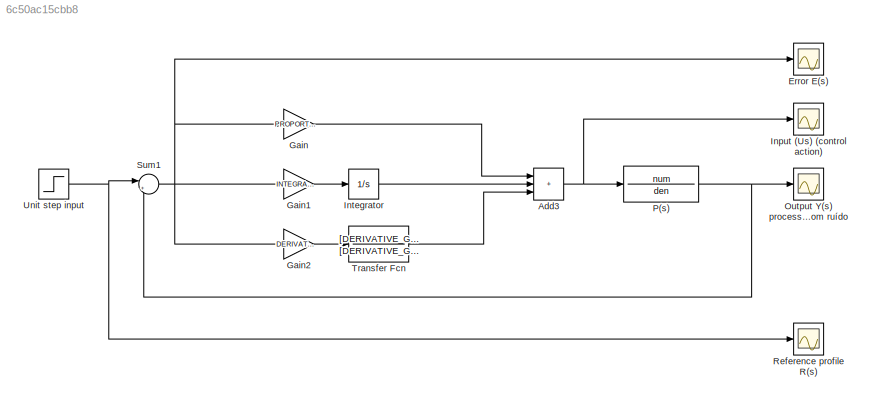
MODEL slx_6c50ac15cbb8
KIND model
CONFIG AbsTol = auto
CONFIG EnableMultiTasking = on
CONFIG FixedStep = 10/1000
CONFIG MaxStep = auto
CONFIG MinStep = auto
CONFIG RelTol = 1e-3
CONFIG SampleTimeConstraint = Unconstrained
CONFIG SolverName = FixedStepAuto
CONFIG StartTime = 0.0
CONFIG StopTime = 20
BLOCK [Sum] Add3
  IconShape = rectangular
  Inputs = +++
  Ports = [3, 1]
BLOCK [Scope] Error E(s)
  Floating = off
  NumInputPorts = 1
  Ports = [1]
  ScopeSpecificationString = Simulink.scopes.TimeScopeBlockCfg('CurrentConfiguration', extmgr.ConfigurationSet(extmgr.Configuration('Core','General UI',true),extmgr.Configuration('Core','Source UI',true),extmgr.Configuration('Sources','WiredSimulink',true,'DataLogging',true,'DataLoggingVariableName','Error','DataLoggingLimitDataPoints',true,'DataLoggingSaveFormat','Array','DataLoggingDecimation','1','DataLoggingDecimateData',...<+1734ch>
BLOCK [Gain] Gain
  Gain = PROPORTIONAL_GAIN
BLOCK [Gain] Gain1
  Gain = INTEGRAL_GAIN
BLOCK [Gain] Gain2
  Gain = DERIVATIVE_GAIN
BLOCK [Scope] Input (Us) (control action)
  Floating = off
  NumInputPorts = 1
  Ports = [1]
  ScopeSpecificationString = Simulink.scopes.TimeScopeBlockCfg('CurrentConfiguration', extmgr.ConfigurationSet(extmgr.Configuration('Core','General UI',true),extmgr.Configuration('Core','Source UI',true),extmgr.Configuration('Sources','WiredSimulink',true,'DataLogging',true,'DataLoggingVariableName','Input','DataLoggingSaveFormat','Array','DataLoggingDecimation','1','DataLoggingDecimateData',true),extmgr.Configuration('Visual...<+1684ch>
BLOCK [Integrator] Integrator
  Ports = [1, 1]
BLOCK [Scope] Output Y(s) processo com ruído
  Floating = off
  NumInputPorts = 1
  Ports = [1]
  ScopeSpecificationString = Simulink.scopes.TimeScopeBlockCfg('CurrentConfiguration', extmgr.ConfigurationSet(extmgr.Configuration('Core','General UI',true),extmgr.Configuration('Core','Source UI',true),extmgr.Configuration('Sources','WiredSimulink',true,'DataLogging',true,'DataLoggingVariableName','OutputRead','DataLoggingLimitDataPoints',true,'DataLoggingSaveFormat','Array','DataLoggingDecimation','1','DataLoggingDecimateD...<+1727ch>
BLOCK [TransferFcn] P(s)
  Denominator = den
  Numerator = num
BLOCK [Scope] Reference profile R(s)
  Floating = off
  NumInputPorts = 1
  Ports = [1]
  ScopeSpecificationString = Simulink.scopes.TimeScopeBlockCfg('CurrentConfiguration', extmgr.ConfigurationSet(extmgr.Configuration('Core','General UI',true),extmgr.Configuration('Core','Source UI',true),extmgr.Configuration('Sources','WiredSimulink',true,'DataLogging',true,'DataLoggingLimitDataPoints',true,'DataLoggingSaveFormat','Array','DataLoggingDecimation','1','DataLoggingDecimateData',true,'DataLoggingVariableName','Re...<+1684ch>
BLOCK [Sum] Sum1
  Inputs = |+-
  Ports = [2, 1]
BLOCK [TransferFcn] Transfer Fcn
  Denominator = [DERIVATIVE_GAIN/20 1]
  Numerator = [DERIVATIVE_GAIN 0]
BLOCK [Step] Unit step input
  SampleTime = 0
  Time = 0
NET Add3:1 -> Input (Us) (control action):1, P(s):1
LINE Gain1:1 -> Integrator:1
LINE Gain2:1 -> Transfer Fcn:1
LINE Gain:1 -> Add3:1
LINE Integrator:1 -> Add3:2
NET P(s):1 -> Output Y(s) processo com ruído:1, Sum1:2
NET Sum1:1 -> Error E(s):1, Gain1:1, Gain2:1, Gain:1
LINE Transfer Fcn:1 -> Add3:3
NET Unit step input:1 -> Reference profile R(s):1, Sum1:1
note: NET lines group one-source signal fan-out (src -> all destinations, sorted); 1:1 wires keep LINE
